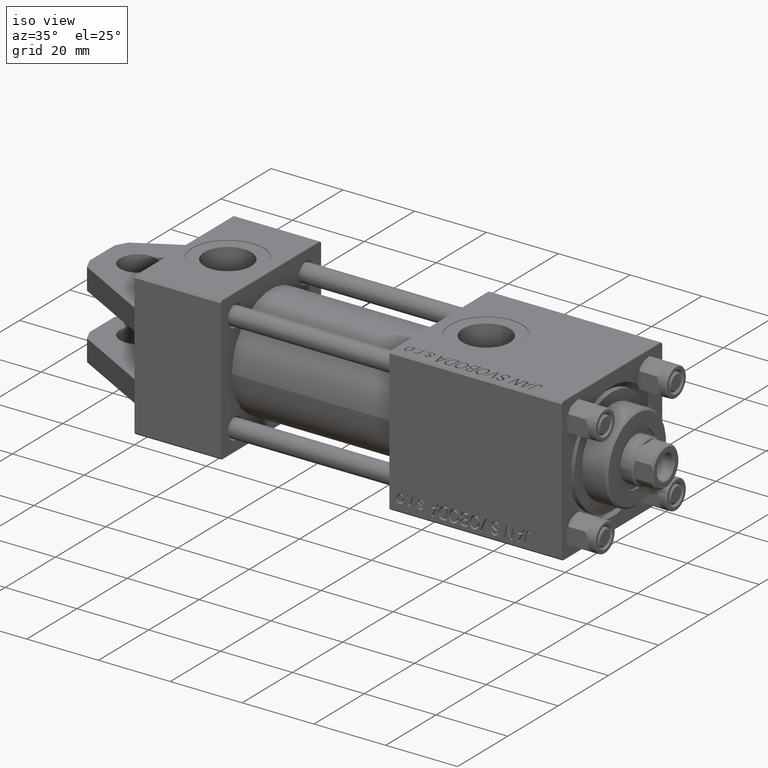
[diagram: clean part render]
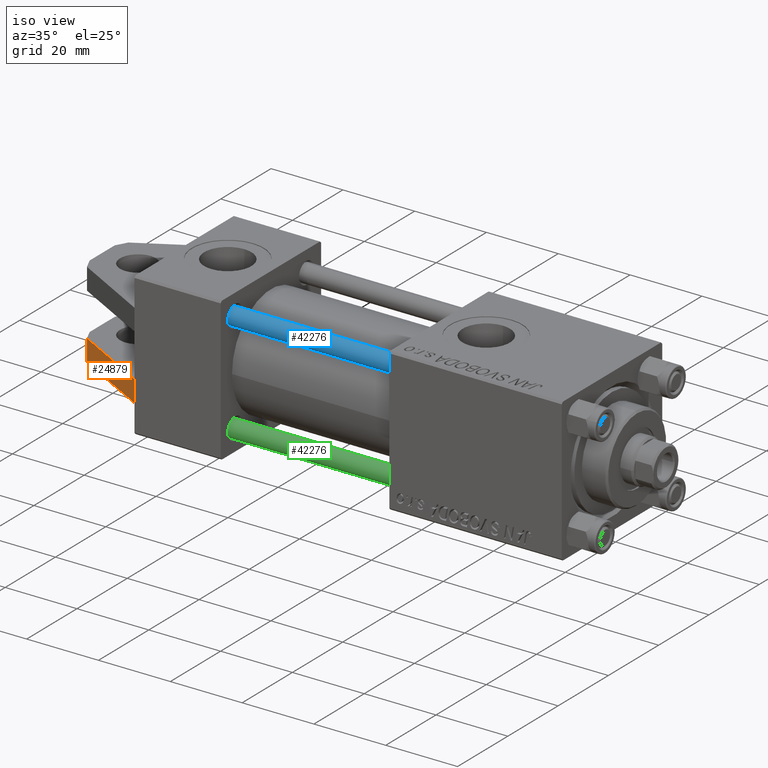
[diagram: same view with three faces highlighted in distinct colors, each labeled with its STEP entity id]
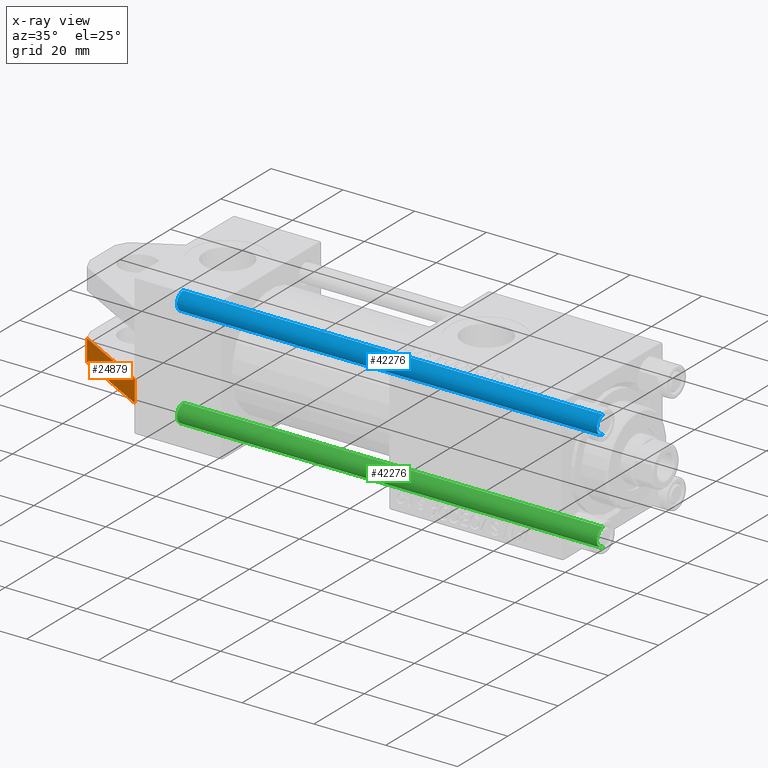
[diagram: x-ray of the same camera — body ghosted, the three highlighted faces saturated]
A machine part, iso view with three faces highlighted in distinct colors.
The next image is the same camera in x-ray (body ghosted, the three faces saturated) — at least one of them is partly hidden behind the body in this view.
Their STEP definitions:

[orange] entity #24879 — the highlighted planar face has unit normal (0.4825, 0.8759, 0).
#69 = LINE ( 'NONE', #15392, #48552 ) ;
#1428 = VERTEX_POINT ( 'NONE', #14653 ) ;
#1884 = EDGE_CURVE ( 'NONE', #19558, #36849, #2038, .T. ) ;
#2038 = LINE ( 'NONE', #2285, #8858 ) ;
#2112 = CARTESIAN_POINT ( 'NONE',  ( 0.000000000000000000, 12.00000000000000000, -20.00000000000000000 ) ) ;
#2285 = CARTESIAN_POINT ( 'NONE',  ( 0.000000000000000000, 12.00000000000000000, -20.00000000000000000 ) ) ;
#2772 = AXIS2_PLACEMENT_3D ( 'NONE', #5638, #27047, #47815 ) ;
#3337 = DIRECTION ( 'NONE',  ( -0.000000000000000000, -1.000000000000000000, -0.000000000000000000 ) ) ;
#4864 = ORIENTED_EDGE ( 'NONE', *, *, #25160, .F. ) ;
#5473 = ORIENTED_EDGE ( 'NONE', *, *, #1884, .T. ) ;
#5638 = CARTESIAN_POINT ( 'NONE',  ( -21.53774081437719801, 12.00000000000000000, -8.135824943146822363 ) ) ;
#7873 = VECTOR ( 'NONE', #42763, 1000.000000000000114 ) ;
#8858 = VECTOR ( 'NONE', #10579, 1000.000000000000000 ) ;
#9432 = CARTESIAN_POINT ( 'NONE',  ( 0.000000000000000000, 6.000000000000000000, -20.00000000000000355 ) ) ;
#10579 = DIRECTION ( 'NONE',  ( -0.000000000000000000, -1.000000000000000000, -0.000000000000000000 ) ) ;
#14653 = CARTESIAN_POINT ( 'NONE',  ( -21.53774081437719801, 12.00000000000000000, -8.135824943146822363 ) ) ;
#15094 = DIRECTION ( 'NONE',  ( -0.8758994395537048616, -0.000000000000000000, 0.4824937012951625581 ) ) ;
#15392 = CARTESIAN_POINT ( 'NONE',  ( -21.53774081437719801, 12.00000000000000000, -8.135824943146822363 ) ) ;
#16660 = CARTESIAN_POINT ( 'NONE',  ( -21.53774081437719801, 6.000000000000000000, -8.135824943146822363 ) ) ;
#19558 = VERTEX_POINT ( 'NONE', #2112 ) ;
#21805 = EDGE_LOOP ( 'NONE', ( #49582, #4864, #36134, #5473 ) ) ;
#22647 = VERTEX_POINT ( 'NONE', #28529 ) ;
#24879 = ADVANCED_FACE ( 'NONE', ( #39267 ), #46144, .F. ) ;
#25160 = EDGE_CURVE ( 'NONE', #1428, #22647, #69, .T. ) ;
#26875 = LINE ( 'NONE', #42183, #38389 ) ;
#27047 = DIRECTION ( 'NONE',  ( 0.4824937012951626691, -0.000000000000000000, 0.8758994395537049726 ) ) ;
#28529 = CARTESIAN_POINT ( 'NONE',  ( -21.53774081437719801, 6.000000000000000000, -8.135824943146822363 ) ) ;
#36134 = ORIENTED_EDGE ( 'NONE', *, *, #46959, .F. ) ;
#36849 = VERTEX_POINT ( 'NONE', #9432 ) ;
#38389 = VECTOR ( 'NONE', #15094, 1000.000000000000114 ) ;
#39267 = FACE_OUTER_BOUND ( 'NONE', #21805, .T. ) ;
#42126 = EDGE_CURVE ( 'NONE', #36849, #22647, #46301, .T. ) ;
#42183 = CARTESIAN_POINT ( 'NONE',  ( -21.53774081437719801, 12.00000000000000000, -8.135824943146822363 ) ) ;
#42763 = DIRECTION ( 'NONE',  ( -0.8758994395537048616, -0.000000000000000000, 0.4824937012951625581 ) ) ;
#46144 = PLANE ( 'NONE',  #2772 ) ;
#46301 = LINE ( 'NONE', #16660, #7873 ) ;
#46959 = EDGE_CURVE ( 'NONE', #19558, #1428, #26875, .T. ) ;
#47815 = DIRECTION ( 'NONE',  ( 0.8758994395537048616, 0.000000000000000000, -0.4824937012951626136 ) ) ;
#48552 = VECTOR ( 'NONE', #3337, 1000.000000000000000 ) ;
#49582 = ORIENTED_EDGE ( 'NONE', *, *, #42126, .T. ) ;

[blue] entity #42276 — the highlighted cylindrical surface (edge-blend (fillet) strip) has radius 2.5 mm, axis along (1, 0, 0).
#824 = ORIENTED_EDGE ( 'NONE', *, *, #33326, .F. ) ;
#1909 = CARTESIAN_POINT ( 'NONE',  ( 2.500000000000000000, 3.061616997868383141E-16, 118.0000000000000000 ) ) ;
#3245 = CARTESIAN_POINT ( 'NONE',  ( 0.000000000000000000, 0.000000000000000000, 118.0000000000000000 ) ) ;
#4669 = VECTOR ( 'NONE', #48934, 1000.000000000000000 ) ;
#5913 = AXIS2_PLACEMENT_3D ( 'NONE', #15545, #31333, #30843 ) ;
#9380 = CARTESIAN_POINT ( 'NONE',  ( 2.500000000000000000, 3.061616997868383141E-16, 117.5000000000000142 ) ) ;
#10726 = VERTEX_POINT ( 'NONE', #9380 ) ;
#11127 = AXIS2_PLACEMENT_3D ( 'NONE', #3245, #47296, #28876 ) ;
#13011 = CARTESIAN_POINT ( 'NONE',  ( 0.000000000000000000, 0.000000000000000000, 0.4999999999999726885 ) ) ;
#15545 = CARTESIAN_POINT ( 'NONE',  ( 0.000000000000000000, 0.000000000000000000, 117.5000000000000142 ) ) ;
#17458 = EDGE_CURVE ( 'NONE', #38024, #10726, #32353, .T. ) ;
#17644 = AXIS2_PLACEMENT_3D ( 'NONE', #13011, #40087, #43608 ) ;
#19248 = CIRCLE ( 'NONE', #17644, 2.500000000000000000 ) ;
#21657 = EDGE_CURVE ( 'NONE', #10726, #26806, #36299, .T. ) ;
#22554 = CARTESIAN_POINT ( 'NONE',  ( -2.500000000000000000, 0.000000000000000000, 118.0000000000000000 ) ) ;
#23449 = ORIENTED_EDGE ( 'NONE', *, *, #49265, .T. ) ;
#25239 = DIRECTION ( 'NONE',  ( -0.000000000000000000, -0.000000000000000000, -1.000000000000000000 ) ) ;
#25603 = CYLINDRICAL_SURFACE ( 'NONE', #11127, 2.500000000000000000 ) ;
#26323 = CARTESIAN_POINT ( 'NONE',  ( 2.500000000000000000, 3.061616997868383141E-16, 0.4999999999999726885 ) ) ;
#26806 = VERTEX_POINT ( 'NONE', #26323 ) ;
#28876 = DIRECTION ( 'NONE',  ( -1.000000000000000000, 0.000000000000000000, 0.000000000000000000 ) ) ;
#29603 = VERTEX_POINT ( 'NONE', #33328 ) ;
#30843 = DIRECTION ( 'NONE',  ( 1.000000000000000000, 0.000000000000000000, 0.000000000000000000 ) ) ;
#31333 = DIRECTION ( 'NONE',  ( 0.000000000000000000, 0.000000000000000000, -1.000000000000000000 ) ) ;
#32353 = CIRCLE ( 'NONE', #5913, 2.500000000000000000 ) ;
#33326 = EDGE_CURVE ( 'NONE', #38024, #29603, #45921, .T. ) ;
#33328 = CARTESIAN_POINT ( 'NONE',  ( -2.500000000000000000, 0.000000000000000000, 0.4999999999999726885 ) ) ;
#35902 = EDGE_LOOP ( 'NONE', ( #47345, #39496, #23449, #824 ) ) ;
#36299 = LINE ( 'NONE', #1909, #41333 ) ;
#37638 = FACE_OUTER_BOUND ( 'NONE', #35902, .T. ) ;
#38024 = VERTEX_POINT ( 'NONE', #47744 ) ;
#39496 = ORIENTED_EDGE ( 'NONE', *, *, #21657, .T. ) ;
#40087 = DIRECTION ( 'NONE',  ( -0.000000000000000000, -0.000000000000000000, 1.000000000000000000 ) ) ;
#41333 = VECTOR ( 'NONE', #25239, 1000.000000000000000 ) ;
#42276 = ADVANCED_FACE ( 'NONE', ( #37638 ), #25603, .T. ) ;
#43608 = DIRECTION ( 'NONE',  ( 1.000000000000000000, 0.000000000000000000, 0.000000000000000000 ) ) ;
#45921 = LINE ( 'NONE', #22554, #4669 ) ;
#47296 = DIRECTION ( 'NONE',  ( -0.000000000000000000, -0.000000000000000000, -1.000000000000000000 ) ) ;
#47345 = ORIENTED_EDGE ( 'NONE', *, *, #17458, .T. ) ;
#47744 = CARTESIAN_POINT ( 'NONE',  ( -2.500000000000000000, 0.000000000000000000, 117.5000000000000142 ) ) ;
#48934 = DIRECTION ( 'NONE',  ( -0.000000000000000000, -0.000000000000000000, -1.000000000000000000 ) ) ;
#49265 = EDGE_CURVE ( 'NONE', #26806, #29603, #19248, .T. ) ;

[green] entity #42276 — the highlighted cylindrical surface (edge-blend (fillet) strip) has radius 2.5 mm, axis along (-1, -0, 0).
#824 = ORIENTED_EDGE ( 'NONE', *, *, #33326, .F. ) ;
#1909 = CARTESIAN_POINT ( 'NONE',  ( 2.500000000000000000, 3.061616997868383141E-16, 118.0000000000000000 ) ) ;
#3245 = CARTESIAN_POINT ( 'NONE',  ( 0.000000000000000000, 0.000000000000000000, 118.0000000000000000 ) ) ;
#4669 = VECTOR ( 'NONE', #48934, 1000.000000000000000 ) ;
#5913 = AXIS2_PLACEMENT_3D ( 'NONE', #15545, #31333, #30843 ) ;
#9380 = CARTESIAN_POINT ( 'NONE',  ( 2.500000000000000000, 3.061616997868383141E-16, 117.5000000000000142 ) ) ;
#10726 = VERTEX_POINT ( 'NONE', #9380 ) ;
#11127 = AXIS2_PLACEMENT_3D ( 'NONE', #3245, #47296, #28876 ) ;
#13011 = CARTESIAN_POINT ( 'NONE',  ( 0.000000000000000000, 0.000000000000000000, 0.4999999999999726885 ) ) ;
#15545 = CARTESIAN_POINT ( 'NONE',  ( 0.000000000000000000, 0.000000000000000000, 117.5000000000000142 ) ) ;
#17458 = EDGE_CURVE ( 'NONE', #38024, #10726, #32353, .T. ) ;
#17644 = AXIS2_PLACEMENT_3D ( 'NONE', #13011, #40087, #43608 ) ;
#19248 = CIRCLE ( 'NONE', #17644, 2.500000000000000000 ) ;
#21657 = EDGE_CURVE ( 'NONE', #10726, #26806, #36299, .T. ) ;
#22554 = CARTESIAN_POINT ( 'NONE',  ( -2.500000000000000000, 0.000000000000000000, 118.0000000000000000 ) ) ;
#23449 = ORIENTED_EDGE ( 'NONE', *, *, #49265, .T. ) ;
#25239 = DIRECTION ( 'NONE',  ( -0.000000000000000000, -0.000000000000000000, -1.000000000000000000 ) ) ;
#25603 = CYLINDRICAL_SURFACE ( 'NONE', #11127, 2.500000000000000000 ) ;
#26323 = CARTESIAN_POINT ( 'NONE',  ( 2.500000000000000000, 3.061616997868383141E-16, 0.4999999999999726885 ) ) ;
#26806 = VERTEX_POINT ( 'NONE', #26323 ) ;
#28876 = DIRECTION ( 'NONE',  ( -1.000000000000000000, 0.000000000000000000, 0.000000000000000000 ) ) ;
#29603 = VERTEX_POINT ( 'NONE', #33328 ) ;
#30843 = DIRECTION ( 'NONE',  ( 1.000000000000000000, 0.000000000000000000, 0.000000000000000000 ) ) ;
#31333 = DIRECTION ( 'NONE',  ( 0.000000000000000000, 0.000000000000000000, -1.000000000000000000 ) ) ;
#32353 = CIRCLE ( 'NONE', #5913, 2.500000000000000000 ) ;
#33326 = EDGE_CURVE ( 'NONE', #38024, #29603, #45921, .T. ) ;
#33328 = CARTESIAN_POINT ( 'NONE',  ( -2.500000000000000000, 0.000000000000000000, 0.4999999999999726885 ) ) ;
#35902 = EDGE_LOOP ( 'NONE', ( #47345, #39496, #23449, #824 ) ) ;
#36299 = LINE ( 'NONE', #1909, #41333 ) ;
#37638 = FACE_OUTER_BOUND ( 'NONE', #35902, .T. ) ;
#38024 = VERTEX_POINT ( 'NONE', #47744 ) ;
#39496 = ORIENTED_EDGE ( 'NONE', *, *, #21657, .T. ) ;
#40087 = DIRECTION ( 'NONE',  ( -0.000000000000000000, -0.000000000000000000, 1.000000000000000000 ) ) ;
#41333 = VECTOR ( 'NONE', #25239, 1000.000000000000000 ) ;
#42276 = ADVANCED_FACE ( 'NONE', ( #37638 ), #25603, .T. ) ;
#43608 = DIRECTION ( 'NONE',  ( 1.000000000000000000, 0.000000000000000000, 0.000000000000000000 ) ) ;
#45921 = LINE ( 'NONE', #22554, #4669 ) ;
#47296 = DIRECTION ( 'NONE',  ( -0.000000000000000000, -0.000000000000000000, -1.000000000000000000 ) ) ;
#47345 = ORIENTED_EDGE ( 'NONE', *, *, #17458, .T. ) ;
#47744 = CARTESIAN_POINT ( 'NONE',  ( -2.500000000000000000, 0.000000000000000000, 117.5000000000000142 ) ) ;
#48934 = DIRECTION ( 'NONE',  ( -0.000000000000000000, -0.000000000000000000, -1.000000000000000000 ) ) ;
#49265 = EDGE_CURVE ( 'NONE', #26806, #29603, #19248, .T. ) ;